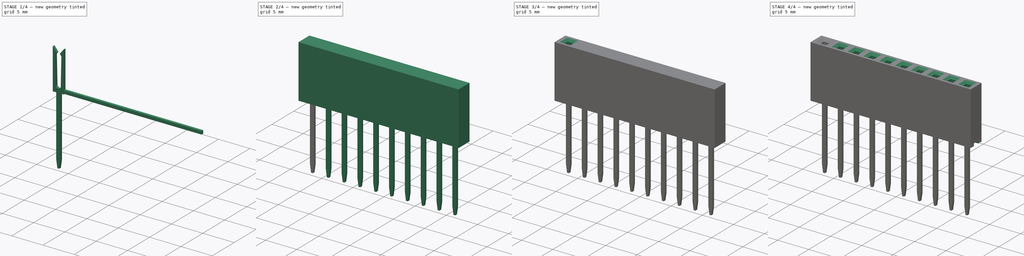
[diagram: build sequence overview — one tinted view per stage of 4, left to right]
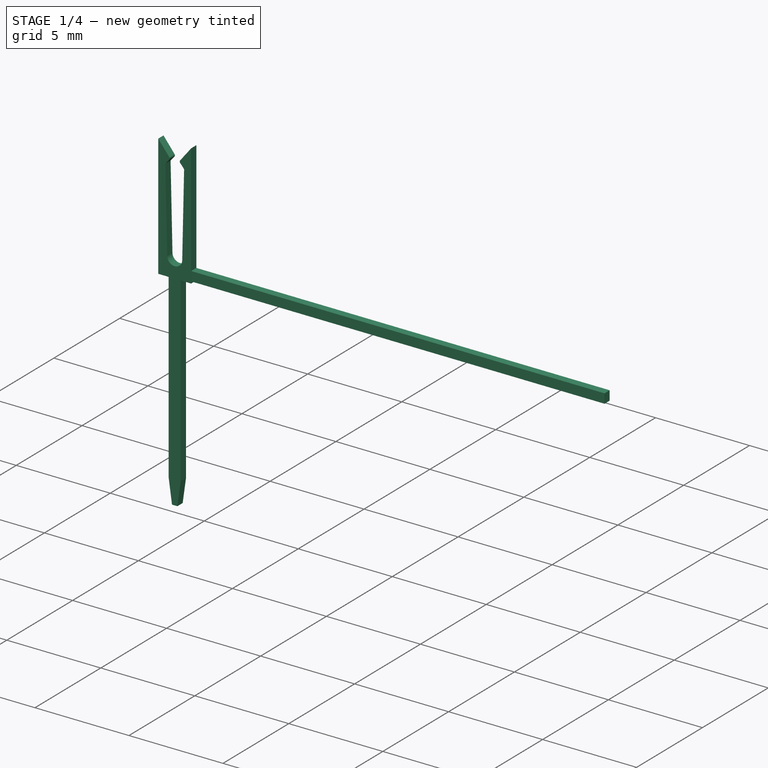
[diagram: stage 1 of 4 — iso view after this stage's code; geometry added in this stage tinted green]
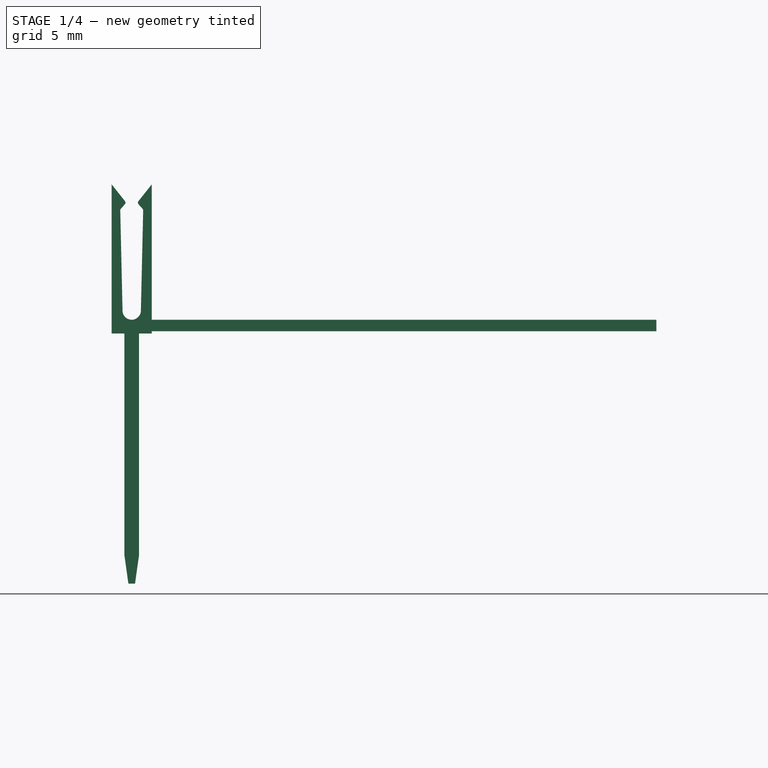
[diagram: stage 1 of 4 — front view after this stage's code; geometry added in this stage tinted green]
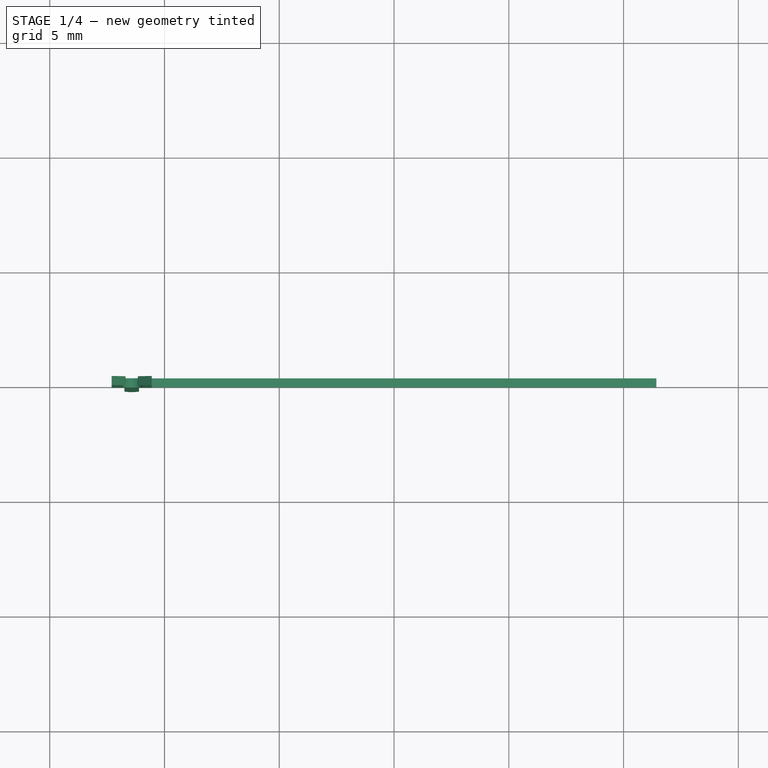
[diagram: stage 1 of 4 — top view after this stage's code; geometry added in this stage tinted green]
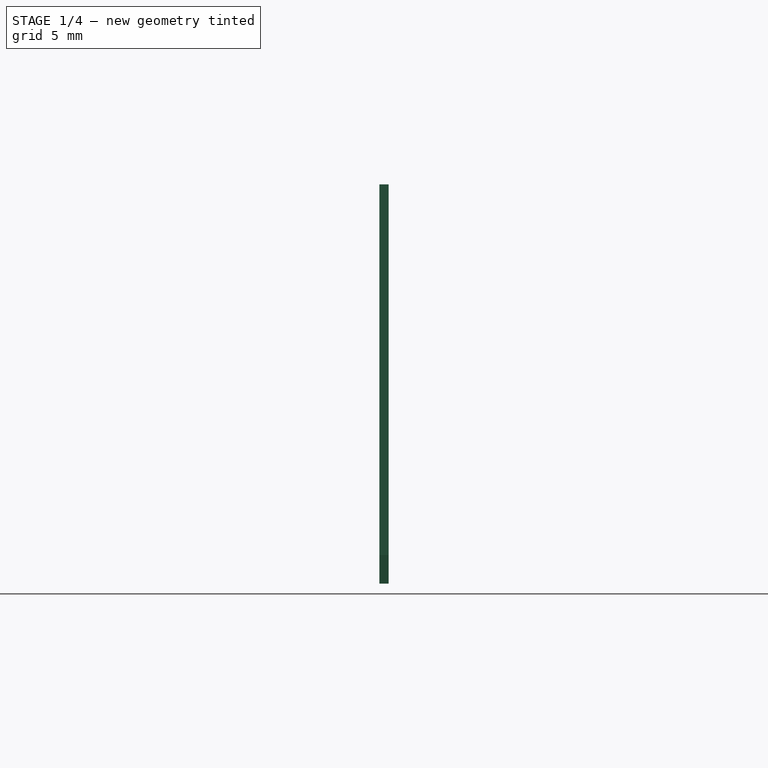
[diagram: stage 1 of 4 — right view after this stage's code; geometry added in this stage tinted green]
FCSTD DOCUMENT  (FreeCAD 0.21R33668 +7 (Git))
Label: Stackable Header 2.54 mm
License: <copyright redacted>
LicenseURL: https://creativecommons.org/licenses/by-sa/4.0/
objects: Sketcher::SketchObject×6, PartDesign::Pad×3, PartDesign::Pocket×3, PartDesign::LinearPattern×2, PartDesign::Body×2, Spreadsheet::Sheet×1, PartDesign::Chamfer×1, App::Part×1
note: 24 computed .brp shape members not serialized (recipe doc carries the construction recipe); baked Part::Feature solids carry a one-line shape summary decoded from their .brp

FEATURE [PartDesign::Body] Body  label="Housing"
  Group = -> [Sketch,Pad,Sketch001,Sketch004,Pocket002,Pocket,Chamfer,Sketch002,LinearPattern,Pocket001]
  Origin = -> Origin
  Tip = -> Pocket001
FEATURE [Sketcher::SketchObject] Sketch005
  FullyConstrained = true
  MapMode = 5
  Placement = pos=(0,0,0) rot=(1,0,0;1.5708rad)
  Support = -> [XZ_Plane001]
  expr: Constraints[2] = Spreadsheet.pins_width
  sketch-geometry (7):
    g0: LineSegment StartX=-11.43 StartY=0 StartZ=0 EndX=11.43 EndY=0 EndZ=0
    g1: LineSegment StartX=-11.43 StartY=0 StartZ=0 EndX=-11.43 EndY=0.5 EndZ=0
    g2: LineSegment StartX=-11.43 StartY=0.5 StartZ=0 EndX=-11.43 EndY=1 EndZ=0
    g3: LineSegment StartX=11.43 StartY=0 StartZ=0 EndX=11.43 EndY=0.5 EndZ=0
    g4: LineSegment StartX=11.43 StartY=0.5 StartZ=0 EndX=11.43 EndY=1 EndZ=0
    g5: LineSegment StartX=11.43 StartY=1 StartZ=0 EndX=-11.43 EndY=1 EndZ=0
    g6: LineSegment StartX=-11.43 StartY=0.5 StartZ=0 EndX=11.43 EndY=0.5 EndZ=0
  constraints (19):
    c: Horizontal(g0)
    c: Symmetric(g0,g0,g-1)
    c: DistanceX(g0,g0) = 22.86
    c: Coincident(g1,g0)
    c: Vertical(g1)
    c: Coincident(g2,g1)
    c: Vertical(g2)
    c: Coincident(g3,g0)
    c: Vertical(g3)
    c: Coincident(g4,g3)
    c: Vertical(g4)
    c: Coincident(g5,g4)
    c: Coincident(g5,g2)
    c: Horizontal(g5)
    c: Coincident(g6,g1)
    c: Coincident(g6,g3)
    c: Horizontal(g6)
    c: DistanceY(g1,g1) = 0.5
    c: DistanceY(g2,g2) = 0.5
FEATURE [PartDesign::Pad] Pad002
  Direction = (0,-1,-2e-16)
  Length = 0.39
  Length2 = 10
  Midplane = true
  Placement = pos=(0,0,0) rot=(1,0,0;1.5708rad)
  Profile = -> Sketch005
  ReferenceAxis = -> Sketch005 [N_Axis]
  Type = 0
  expr: Length = Spreadsheet.pin_thick - 0.01
FEATURE [PartDesign::Pad] Pad001
  BaseFeature = -> Pad002
  Direction = (0,-1,-2e-16)
  Length = 0.4
  Length2 = 10
  Midplane = true
  Placement = pos=(0,0,0) rot=(1,0,0;1.5708rad)
  Profile = -> Sketch003
  ReferenceAxis = -> Sketch003 [N_Axis]
  Type = 0
  expr: Length = Spreadsheet.pin_thick
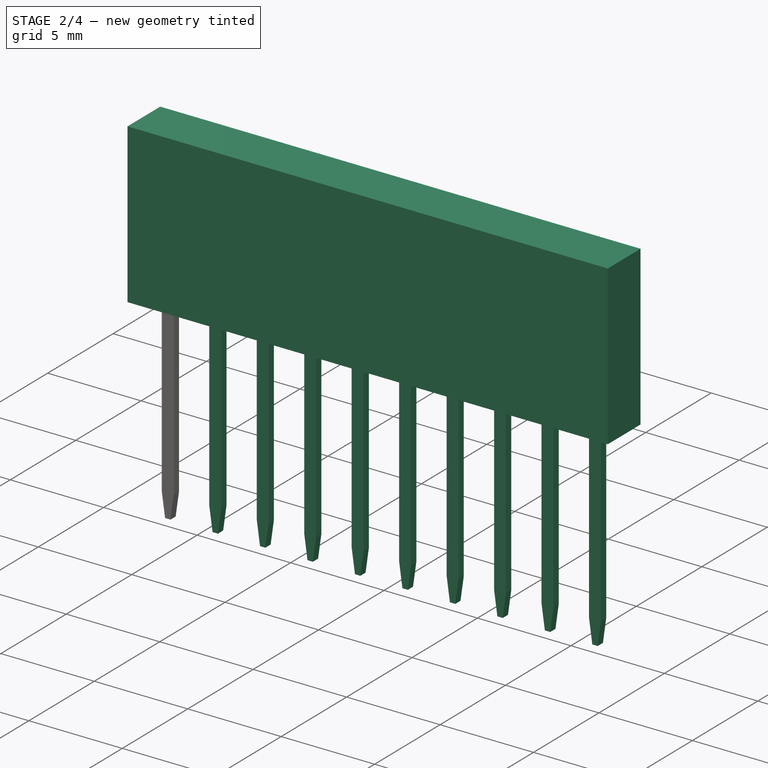
[diagram: stage 2 of 4 — iso view after this stage's code; geometry added in this stage tinted green]
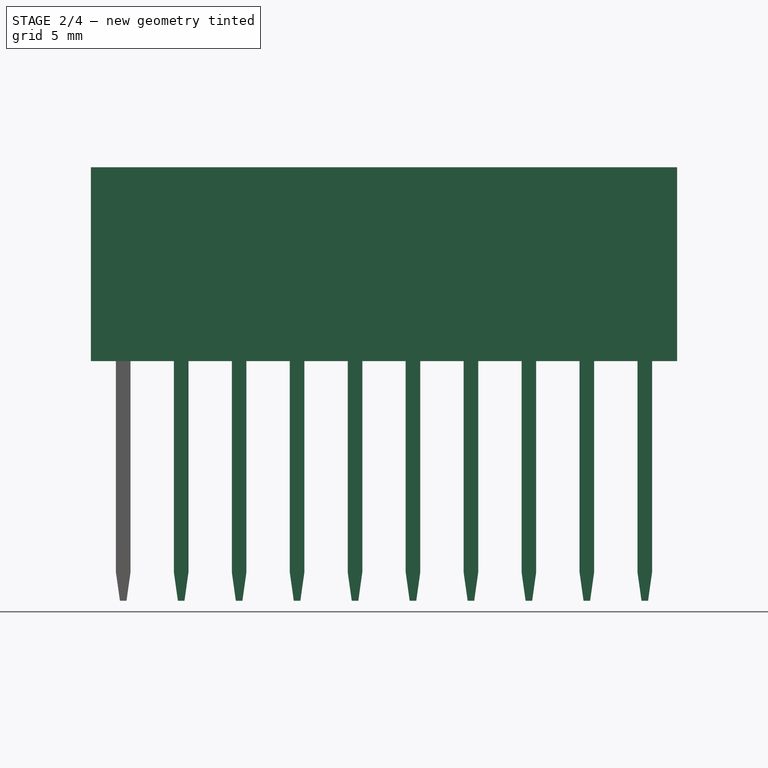
[diagram: stage 2 of 4 — front view after this stage's code; geometry added in this stage tinted green]
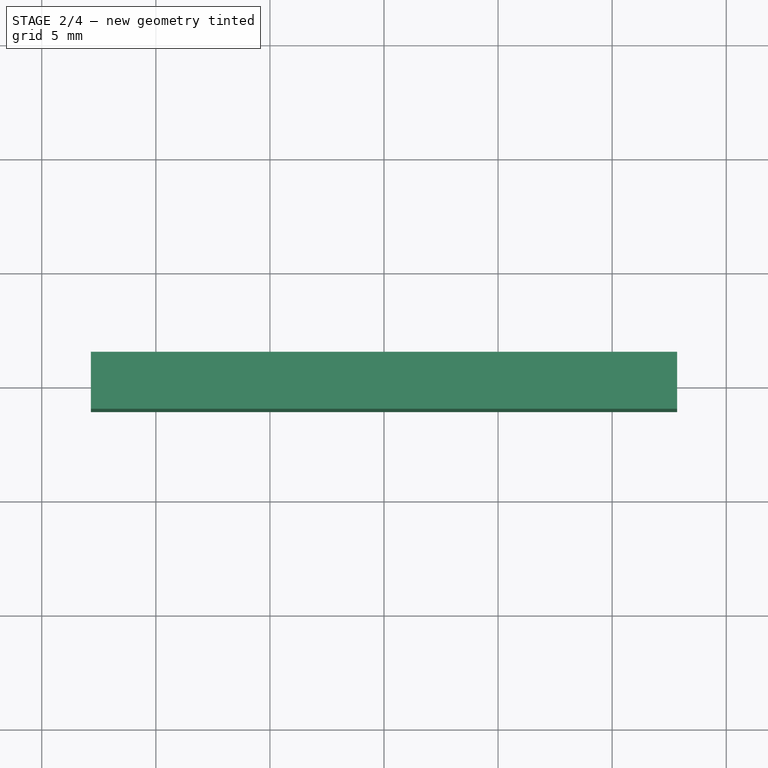
[diagram: stage 2 of 4 — top view after this stage's code; geometry added in this stage tinted green]
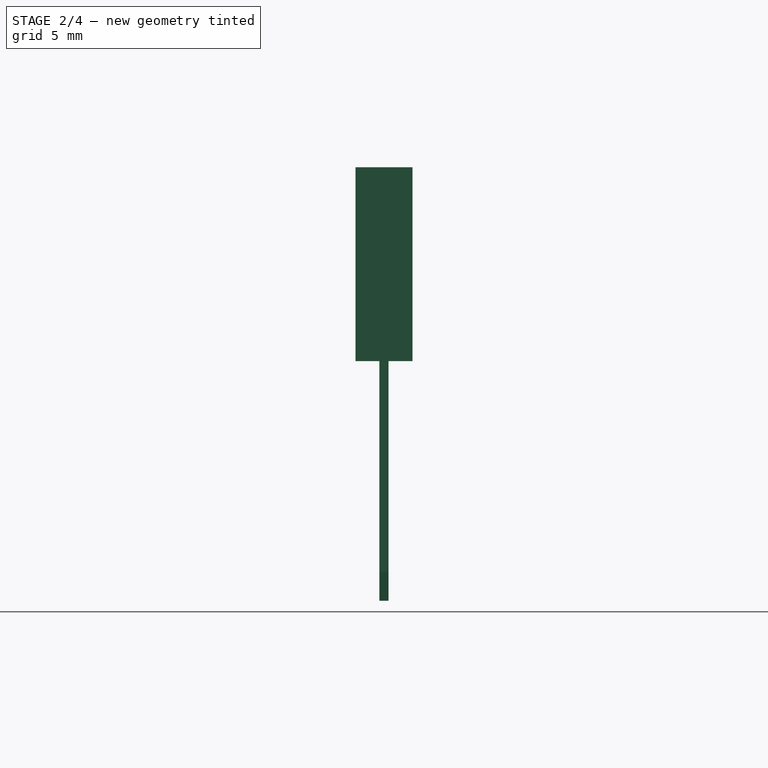
[diagram: stage 2 of 4 — right view after this stage's code; geometry added in this stage tinted green]
FEATURE [Sketcher::SketchObject] Sketch
  FullyConstrained = true
  MapMode = 5
  Support = -> [XY_Plane]
  expr: Constraints[10] = Spreadsheet.housing_depth
  expr: Constraints[11] = Spreadsheet.housing_width
  sketch-geometry (5):
    g0: LineSegment StartX=12.85 StartY=-1.25 StartZ=0 EndX=12.85 EndY=1.25 EndZ=0
    g1: LineSegment StartX=12.85 StartY=1.25 StartZ=0 EndX=-12.85 EndY=1.25 EndZ=0
    g2: LineSegment StartX=-12.85 StartY=1.25 StartZ=0 EndX=-12.85 EndY=-1.25 EndZ=0
    g3: LineSegment StartX=-12.85 StartY=-1.25 StartZ=0 EndX=12.85 EndY=-1.25 EndZ=0
    g4: GeomPoint X=0 Y=0 Z=0
  constraints (12):
    c: Coincident(g0,g1)
    c: Coincident(g1,g2)
    c: Coincident(g2,g3)
    c: Coincident(g3,g0)
    c: Horizontal(g1)
    c: Horizontal(g3)
    c: Vertical(g0)
    c: Vertical(g2)
    c: Symmetric(g1,g0,g4)
    c: Coincident(g4,g-1)
    c: DistanceY(g0,g0) = 2.5
    c: DistanceX(g1,g1) = 25.7
FEATURE [PartDesign::Pad] Pad
  Direction = (0,0,1)
  Length = 8.5
  Length2 = 10
  Profile = -> Sketch
  ReferenceAxis = -> Sketch [N_Axis]
  Type = 0
  expr: Length = Spreadsheet.housing_height
FEATURE [PartDesign::LinearPattern] LinearPattern001
  BaseFeature = -> Pad001
  Direction = -> Sketch003 [H_Axis]
  Length = 22.86
  Occurrences = 10
  Originals = -> [Pad001]
  Placement = pos=(0,0,0) rot=(1,0,0;1.5708rad)
  expr: Length = Spreadsheet.pins_width
  expr: Occurrences = Spreadsheet.num_pins
FEATURE [PartDesign::Body] Body001  label="Pins"
  Group = -> [Pad002,Sketch003,Pad001,Sketch005,LinearPattern001]
  Origin = -> Origin001
  Tip = -> LinearPattern001
FEATURE [App::Part] Part
  Group = -> [Body001,Body]
  Origin = -> Origin002
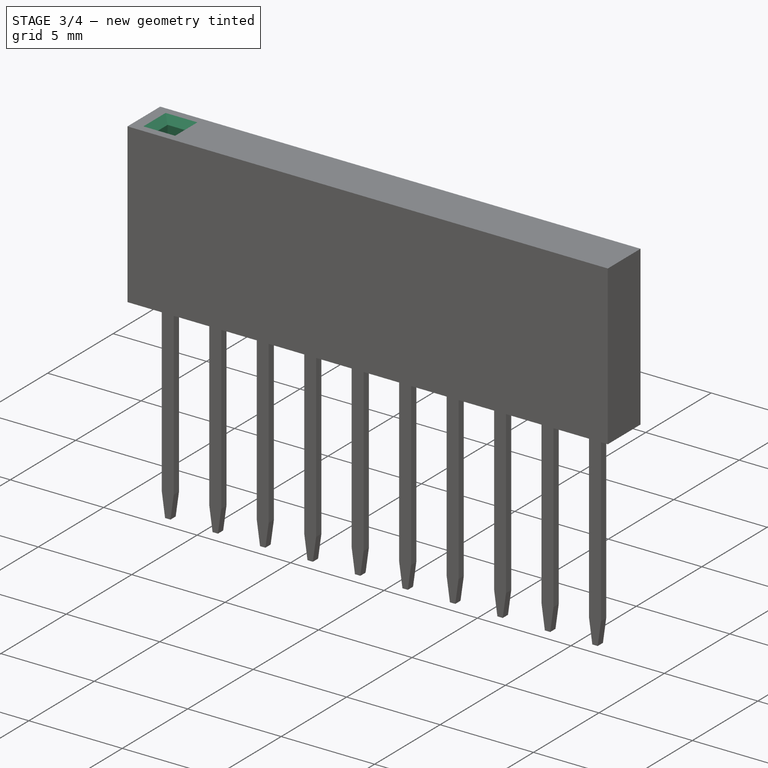
[diagram: stage 3 of 4 — iso view after this stage's code; geometry added in this stage tinted green]
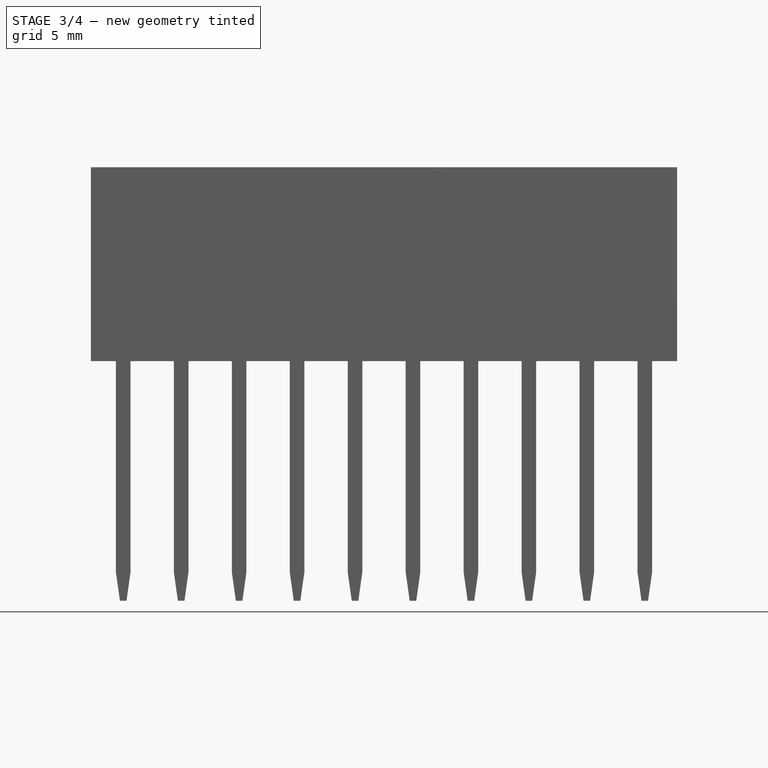
[diagram: stage 3 of 4 — front view after this stage's code; geometry added in this stage tinted green]
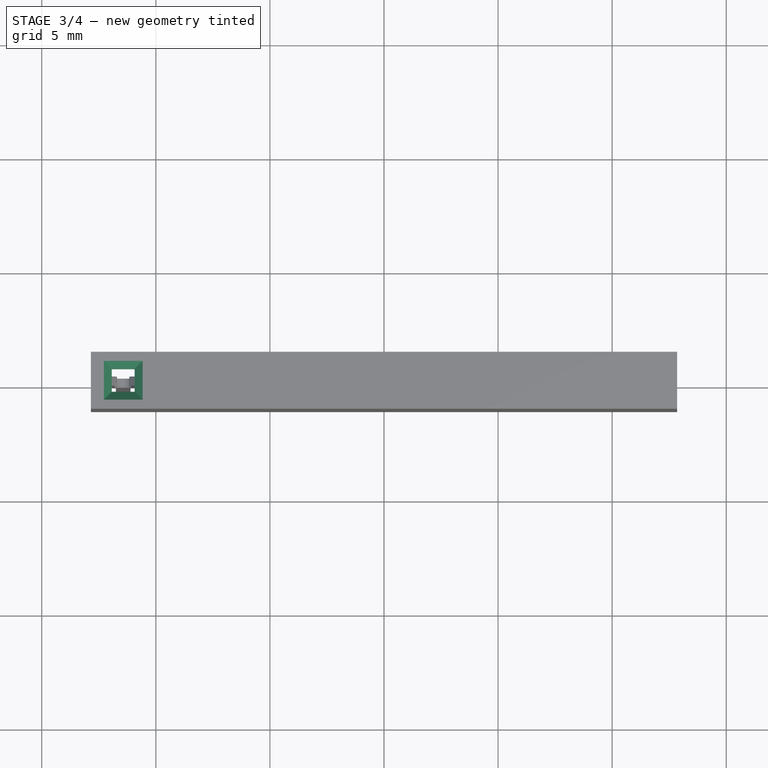
[diagram: stage 3 of 4 — top view after this stage's code; geometry added in this stage tinted green]
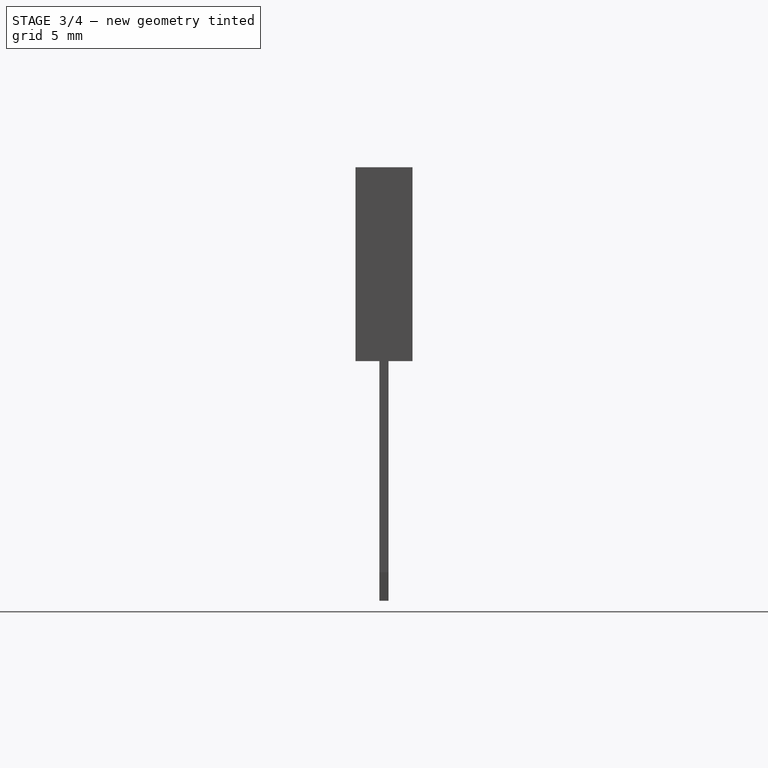
[diagram: stage 3 of 4 — right view after this stage's code; geometry added in this stage tinted green]
FEATURE [Sketcher::SketchObject] Sketch001
  FullyConstrained = true
  MapMode = 5
  Placement = pos=(0,0,8.5) rot=(0,0,1;0rad)
  Support = -> [Pad]
  expr: Constraints[13] = Spreadsheet.hole_size
  expr: Constraints[2] = Spreadsheet.pins_width
  sketch-geometry (6):
    g0: LineSegment StartX=-11.43 StartY=-1e-16 StartZ=0 EndX=11.43 EndY=-1e-16 EndZ=0
    g1: LineSegment StartX=-10.93 StartY=0.5 StartZ=0 EndX=-10.93 EndY=-0.5 EndZ=0
    g2: LineSegment StartX=-10.93 StartY=-0.5 StartZ=0 EndX=-11.93 EndY=-0.5 EndZ=0
    g3: LineSegment StartX=-11.93 StartY=-0.5 StartZ=0 EndX=-11.93 EndY=0.5 EndZ=0
    g4: LineSegment StartX=-11.93 StartY=0.5 StartZ=0 EndX=-10.93 EndY=0.5 EndZ=0
    g5: GeomPoint X=-11.43 Y=-1e-16 Z=0
  constraints (15):
    c: Horizontal(g0)
    c: Symmetric(g0,g0,g-1)
    c: DistanceX(g0,g0) = 22.86
    c: Coincident(g1,g2)
    c: Coincident(g2,g3)
    c: Coincident(g3,g4)
    c: Coincident(g4,g1)
    c: Horizontal(g2)
    c: Horizontal(g4)
    c: Vertical(g1)
    c: Vertical(g3)
    c: Symmetric(g2,g1,g5)
    c: Coincident(g5,g0)
    c: DistanceX(g2,g2) = 1
    c: Equal(g2,g3)
FEATURE [Spreadsheet::Sheet] Spreadsheet
  cells = A2='Number of Pins; B2(num_pins)=10; A3='Pin Pitch (mm); B3(pitch)=2.54; A4='Total Pin Width; B4(pins_width)==B2 * B3 - B3; A5='Total Housing Height; B5(housing_height)=8.5; A6='Total Housing Width; B6(housing_width)==B2 * B3 + 0.3; A7='Total Housing Depth; B7(housing_depth)=2.5; A8='Hole Size; B8(hole_size)=1; A9='Pin Width; B9(pin_width)=0.64; A10='Pin Thickness; B10(pin_thick)=0.4; A11='Pin Length; B11(pin_len)=10.5
FEATURE [Sketcher::SketchObject] Sketch003
  FullyConstrained = true
  MapMode = 5
  Placement = pos=(0,0,0) rot=(1,0,0;1.5708rad)
  Support = -> [XZ_Plane001]
  expr: Constraints[17] = Spreadsheet.pin_width
  expr: Constraints[22] = Spreadsheet.pin_len
  expr: Constraints[2] = Spreadsheet.pins_width
  expr: Constraints[46] = Spreadsheet.housing_height - 2
  sketch-geometry (23):
    g0: LineSegment StartX=-11.43 StartY=0 StartZ=0 EndX=11.43 EndY=0 EndZ=0
    g1: LineSegment StartX=-11.75 StartY=0.4 StartZ=0 EndX=-11.11 EndY=0.4 EndZ=0
    g2: LineSegment StartX=-11.11 StartY=0.4 StartZ=0 EndX=-11.11 EndY=-9.25 EndZ=0
    g3: LineSegment StartX=-11.2857 StartY=-10.5 StartZ=0 EndX=-11.5743 EndY=-10.5 EndZ=0
    g4: LineSegment StartX=-11.75 StartY=-9.25 StartZ=0 EndX=-11.75 EndY=0.4 EndZ=0
    g5: LineSegment StartX=-11.75 StartY=0 StartZ=0 EndX=-11.11 EndY=0 EndZ=0
    g6: LineSegment StartX=-11.75 StartY=-9.25 StartZ=0 EndX=-11.5743 EndY=-10.5 EndZ=0
    g7: LineSegment StartX=-11.11 StartY=-9.25 StartZ=0 EndX=-11.2857 EndY=-10.5 EndZ=0
    g8: LineSegment StartX=-11.75 StartY=0.4 StartZ=0 EndX=-12.305 EndY=0.4 EndZ=0
    g9: LineSegment StartX=-12.305 StartY=0.4 StartZ=0 EndX=-12.305 EndY=6.9 EndZ=0
    g10: LineSegment StartX=-12.305 StartY=6.9 StartZ=0 EndX=-11.7216 EndY=6.16498 EndZ=0
    g11: LineSegment StartX=-11.7243 StartY=6.03731 StartZ=0 EndX=-11.93 EndY=5.8 EndZ=0
    g12: LineSegment StartX=-11.93 StartY=5.8 StartZ=0 EndX=-11.8299 EndY=1.39092 EndZ=0
    g13: LineSegment StartX=-11.11 StartY=0.4 StartZ=0 EndX=-10.555 EndY=0.4 EndZ=0
    g14: LineSegment StartX=-10.555 StartY=0.4 StartZ=0 EndX=-10.555 EndY=6.9 EndZ=0
    g15: LineSegment StartX=-10.555 StartY=6.9 StartZ=0 EndX=-11.1384 EndY=6.16498 EndZ=0
    g16: LineSegment StartX=-11.1357 StartY=6.03731 StartZ=0 EndX=-10.93 EndY=5.8 EndZ=0
    g17: LineSegment StartX=-10.93 StartY=5.8 StartZ=0 EndX=-11.0301 EndY=1.39092 EndZ=0
    g18: ArcOfCircle CenterX=-11.43 CenterY=1.4 CenterZ=0 NormalX=0 NormalY=0 NormalZ=1 AngleXU=0 Radius=0.4 StartAngle=3.16429 EndAngle=6.26049
    g19: ArcOfCircle CenterX=-11.7999 CenterY=6.1028 CenterZ=0 NormalX=0 NormalY=0 NormalZ=1 AngleXU=0 Radius=0.1 StartAngle=5.56909 EndAngle=6.9541
    g20: GeomPoint X=-11.67 Y=6.1 Z=0
    g21: ArcOfCircle CenterX=-11.0601 CenterY=6.1028 CenterZ=0 NormalX=0 NormalY=0 NormalZ=1 AngleXU=0 Radius=0.1 StartAngle=2.47067 EndAngle=3.85568
    g22: GeomPoint X=-11.19 Y=6.1 Z=0
  constraints (64):
    c: Horizontal(g0)
    c: Symmetric(g0,g0,g-1)
    c: DistanceX(g0,g0) = 22.86
    c: Coincident(g1,g2)
    c: Coincident(g4,g1)
    c: Horizontal(g1)
    c: Horizontal(g3)
    c: Vertical(g2)
    c: Vertical(g4)
    c: PointOnObject(g5,g4)
    c: PointOnObject(g5,g2)
    c: Horizontal(g5)
    c: DistanceY(g5,g1) = 0.4
    c: Symmetric(g5,g5,g0)
    c: Angle(g6,g4) = 3.00197
    c: Horizontal(g7,g6)
    c: Equal(g7,g6)
    c: DistanceX(g6,g7) = 0.64
    c: Coincident(g4,g6)
    c: Coincident(g3,g6)
    c: Coincident(g3,g7)
    c: Coincident(g2,g7)
    c: DistanceY(g3,g5) = 10.5
    c: DistanceY(g3,g4) = 1.25
    c: Coincident(g1,g8)
    c: Horizontal(g8)
    c: Coincident(g8,g9)
    c: Vertical(g9)
    c: Coincident(g9,g10)
    c: Coincident(g11,g12)
    c: Coincident(g1,g13)
    c: Horizontal(g13)
    c: Coincident(g13,g14)
    c: Vertical(g14)
    c: Coincident(g14,g15)
    c: Coincident(g16,g17)
    c: Horizontal(g9,g14)
    c: Horizontal(g20,g22)
    c: Horizontal(g11,g16)
    c: Horizontal(g12,g17)
    c: Equal(g12,g17)
    c: Coincident(g18,g17)
    c: Tangent(g18,g12) = -1.5708
    c: Radius(g18) = 0.4
    c: Equal(g8,g13)
    c: DistanceX(g9,g14) = 1.75
    c: DistanceY(g13,g14) = 6.5
    c: DistanceY(g8,g18) = 1
    c: DistanceX(g20,g22) = 0.48
    c: DistanceX(g11,g16) = 1
    c: DistanceY(g20,g9) = 0.8
    c: DistanceY(g11,g20) = 0.3
    c: PointOnObject(g20,g10)
    c: PointOnObject(g20,g11)
    c: Tangent(g10,g19) = 1.5708
    c: Tangent(g11,g19) = 1.5708
    c: PointOnObject(g22,g15)
    c: PointOnObject(g22,g16)
    c: Tangent(g15,g21) = -1.5708
    c: Tangent(g16,g21) = -1.5708
    c: Radius(g19) = 0.1
    c: Equal(g19,g21)
    c: Equal(g10,g15)
    c: Equal(g11,g16)
FEATURE [Sketcher::SketchObject] Sketch004
  FullyConstrained = true
  MapMode = 5
  Placement = pos=(0,0,0) rot=(1,0,0;3.14159rad)
  Support = -> [Pad]
  expr: Constraints[2] = Spreadsheet.pins_width
  sketch-geometry (6):
    g0: LineSegment StartX=-11.43 StartY=3e-16 StartZ=0 EndX=11.43 EndY=3e-16 EndZ=0
    g1: LineSegment StartX=-10.555 StartY=-0.875 StartZ=0 EndX=-10.555 EndY=0.875 EndZ=0
    g2: LineSegment StartX=-10.555 StartY=0.875 StartZ=0 EndX=-12.305 EndY=0.875 EndZ=0
    g3: LineSegment StartX=-12.305 StartY=0.875 StartZ=0 EndX=-12.305 EndY=-0.875 EndZ=0
    g4: LineSegment StartX=-12.305 StartY=-0.875 StartZ=0 EndX=-10.555 EndY=-0.875 EndZ=0
    g5: GeomPoint X=-11.43 Y=3e-16 Z=0
  constraints (15):
    c: Horizontal(g0)
    c: Symmetric(g0,g0,g-1)
    c: DistanceX(g0,g0) = 22.86
    c: Coincident(g1,g2)
    c: Coincident(g2,g3)
    c: Coincident(g3,g4)
    c: Coincident(g4,g1)
    c: Horizontal(g2)
    c: Horizontal(g4)
    c: Vertical(g1)
    c: Vertical(g3)
    c: Symmetric(g2,g1,g5)
    c: Coincident(g5,g0)
    c: Equal(g2,g3)
    c: DistanceX(g2,g2) = 1.75
FEATURE [PartDesign::Pocket] Pocket002
  BaseFeature = -> Pad
  Direction = (0,0,1)
  Length = 7.5
  Length2 = 5
  Profile = -> Sketch004
  ReferenceAxis = -> Sketch004 [N_Axis]
  Type = 0
  expr: Length = Spreadsheet.housing_height - 1
FEATURE [PartDesign::Pocket] Pocket
  BaseFeature = -> Pocket002
  Direction = (0,0,-1)
  Length = 5
  Length2 = 5
  Profile = -> Sketch001
  ReferenceAxis = -> Sketch001 [N_Axis]
  Type = 2
FEATURE [PartDesign::Chamfer] Chamfer
  Angle = 45
  Base = -> Pocket [Edge19,Edge18,Edge17,Edge20]
  BaseFeature = -> Pocket
  ChamferType = 0
  FlipDirection = false
  Size = 0.35
  Size2 = 1
  SupportTransform = false
  UseAllEdges = false
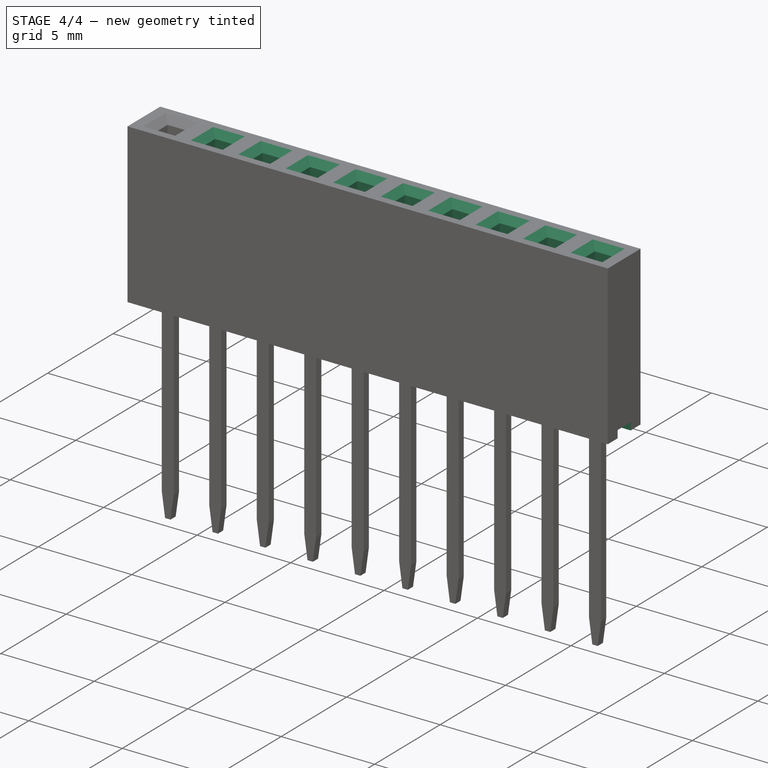
[diagram: stage 4 of 4 — iso view after this stage's code; geometry added in this stage tinted green]
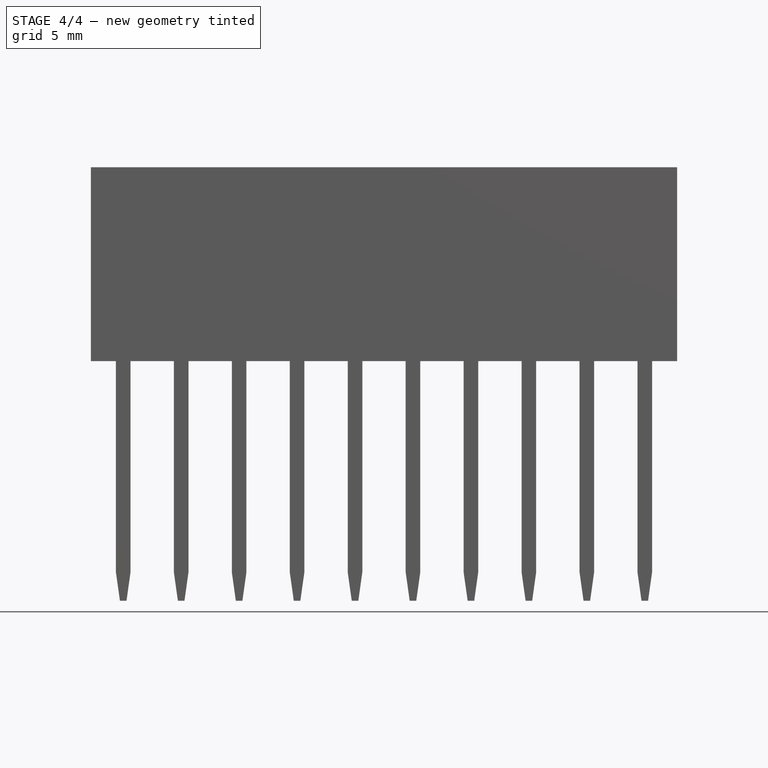
[diagram: stage 4 of 4 — front view after this stage's code; geometry added in this stage tinted green]
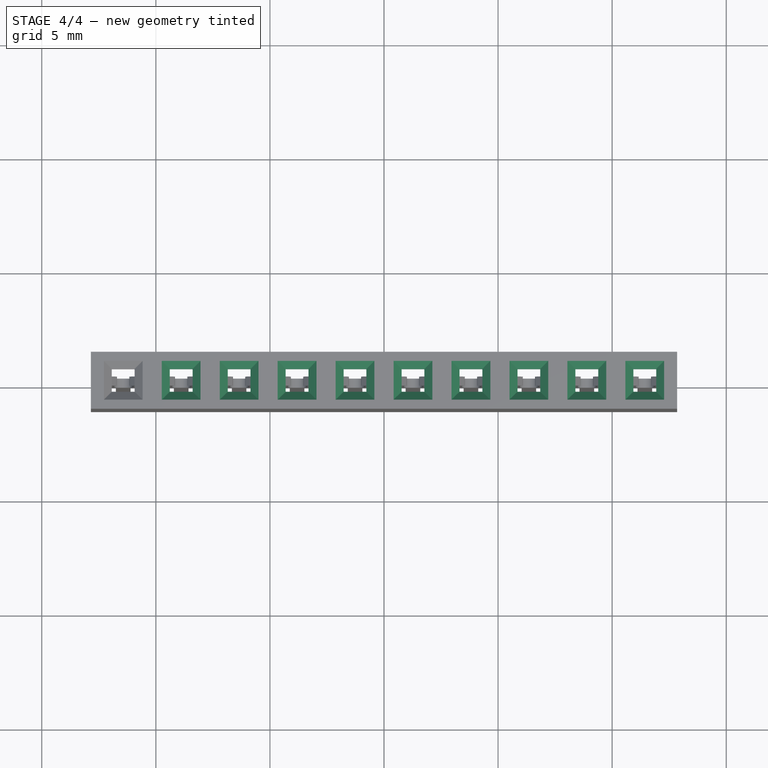
[diagram: stage 4 of 4 — top view after this stage's code; geometry added in this stage tinted green]
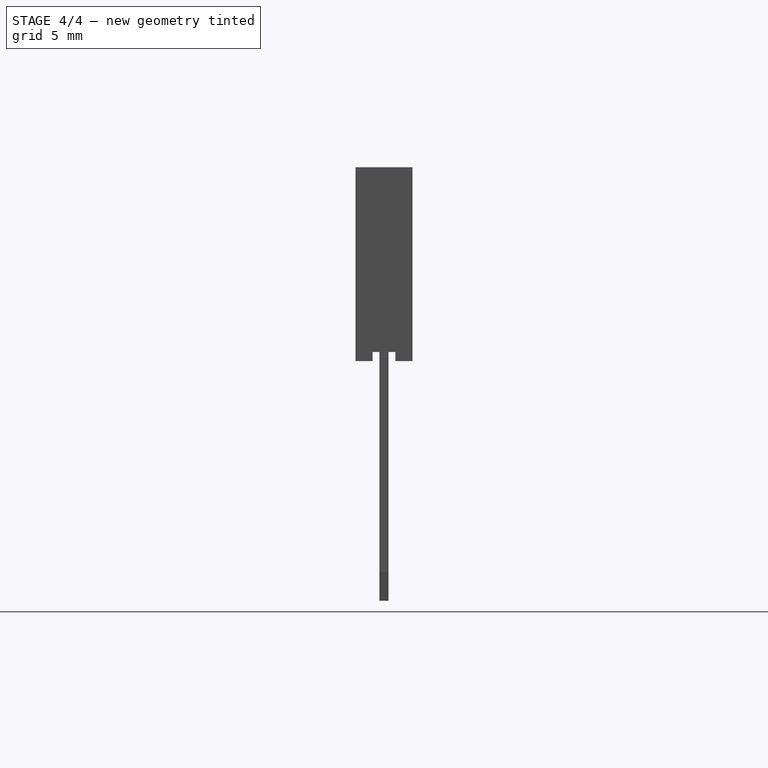
[diagram: stage 4 of 4 — right view after this stage's code; geometry added in this stage tinted green]
FEATURE [Sketcher::SketchObject] Sketch002
  FullyConstrained = true
  MapMode = 5
  Placement = pos=(-12.85,0,0) rot=(0.57735,-0.57735,-0.57735;2.0944rad)
  Support = -> [Chamfer]
  sketch-geometry (4):
    g0: LineSegment StartX=-0.5 StartY=0.4 StartZ=0 EndX=0.5 EndY=0.4 EndZ=0
    g1: LineSegment StartX=0.5 StartY=0.4 StartZ=0 EndX=0.5 EndY=0 EndZ=0
    g2: LineSegment StartX=0.5 StartY=0 StartZ=0 EndX=-0.5 EndY=0 EndZ=0
    g3: LineSegment StartX=-0.5 StartY=0 StartZ=0 EndX=-0.5 EndY=0.4 EndZ=0
  constraints (11):
    c: Coincident(g0,g1)
    c: Coincident(g1,g2)
    c: Coincident(g2,g3)
    c: Coincident(g3,g0)
    c: Horizontal(g0)
    c: Horizontal(g2)
    c: Vertical(g1)
    c: Vertical(g3)
    c: Symmetric(g2,g2,g-1)
    c: DistanceX(g0,g0) = 1
    c: DistanceY(g1,g1) = 0.4
FEATURE [PartDesign::LinearPattern] LinearPattern
  BaseFeature = -> Chamfer
  Direction = -> Sketch001 [H_Axis]
  Length = 22.86
  Occurrences = 10
  Originals = -> [Pocket,Chamfer,Pocket002]
  expr: Length = Spreadsheet.pins_width
  expr: Occurrences = Spreadsheet.num_pins
FEATURE [PartDesign::Pocket] Pocket001
  BaseFeature = -> LinearPattern
  Direction = (1,0,0)
  Length = 5
  Length2 = 5
  Profile = -> Sketch002
  ReferenceAxis = -> Sketch002 [N_Axis]
  Type = 1
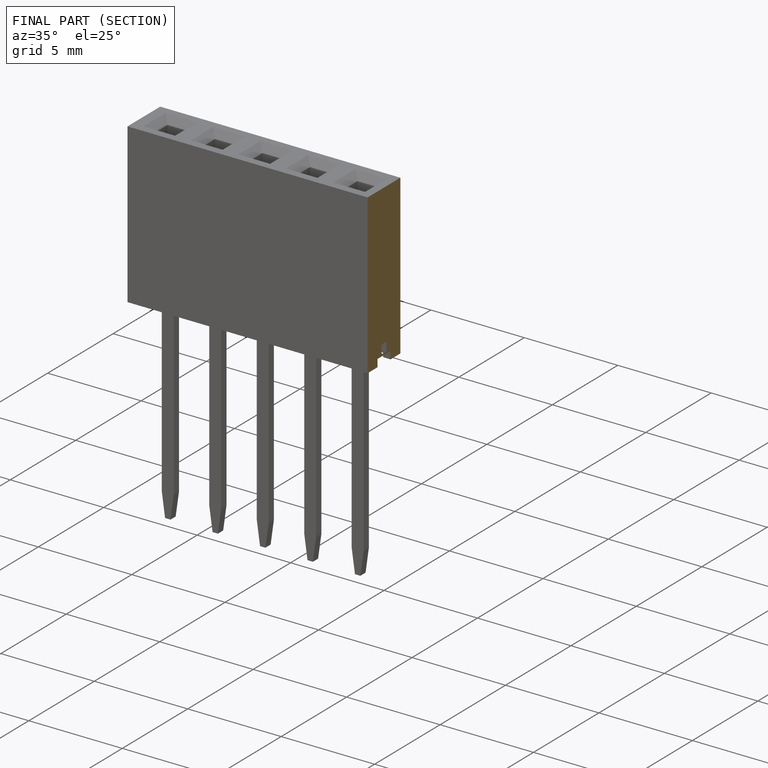
[diagram: finished part — half-section view (interior)]
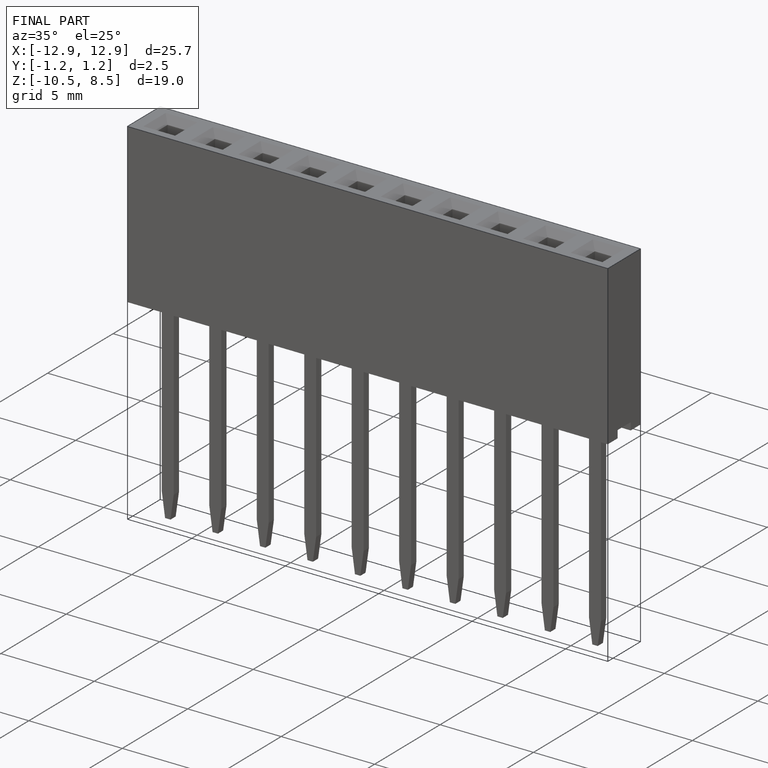
[diagram: finished part — iso view with bounding-box wireframe]
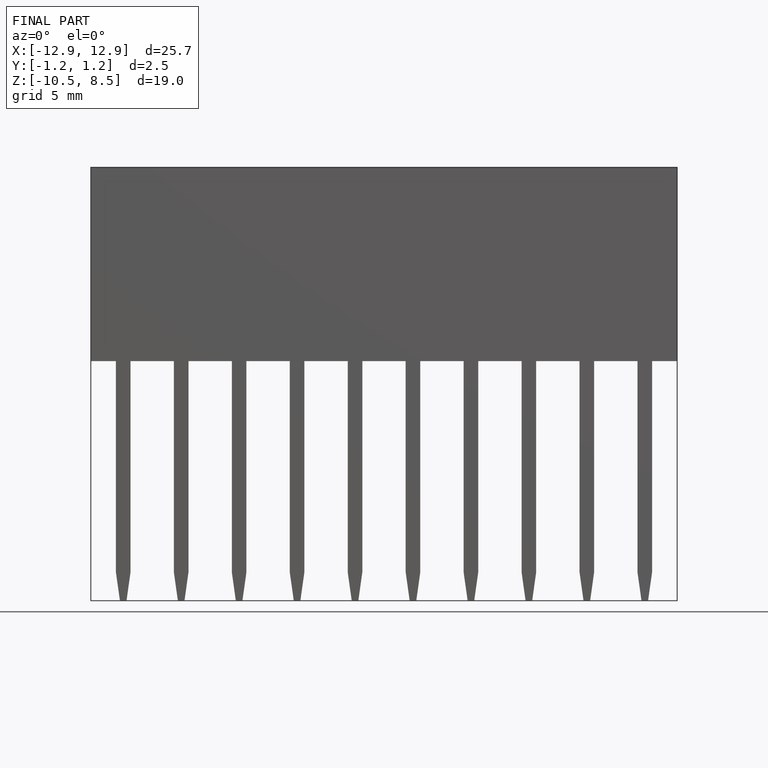
[diagram: finished part — front view with bounding-box wireframe]
